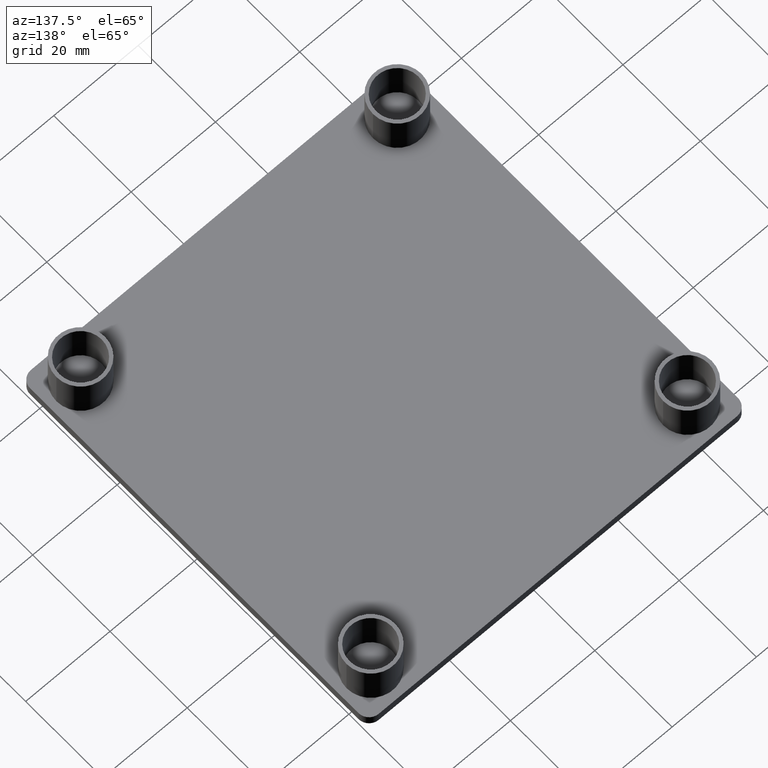
[diagram: clean part render]
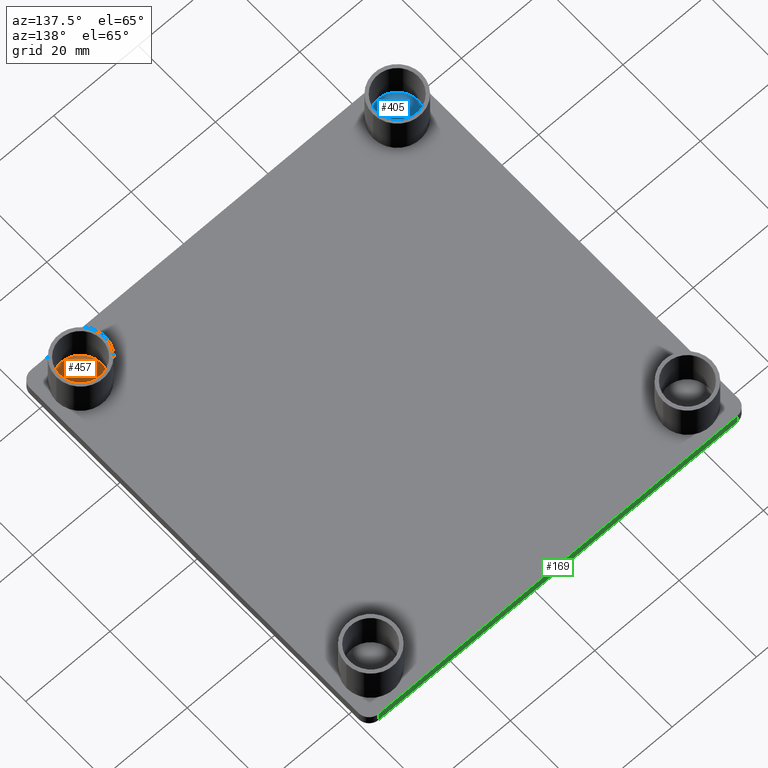
[diagram: same view with three faces highlighted in distinct colors, each labeled with its STEP entity id]
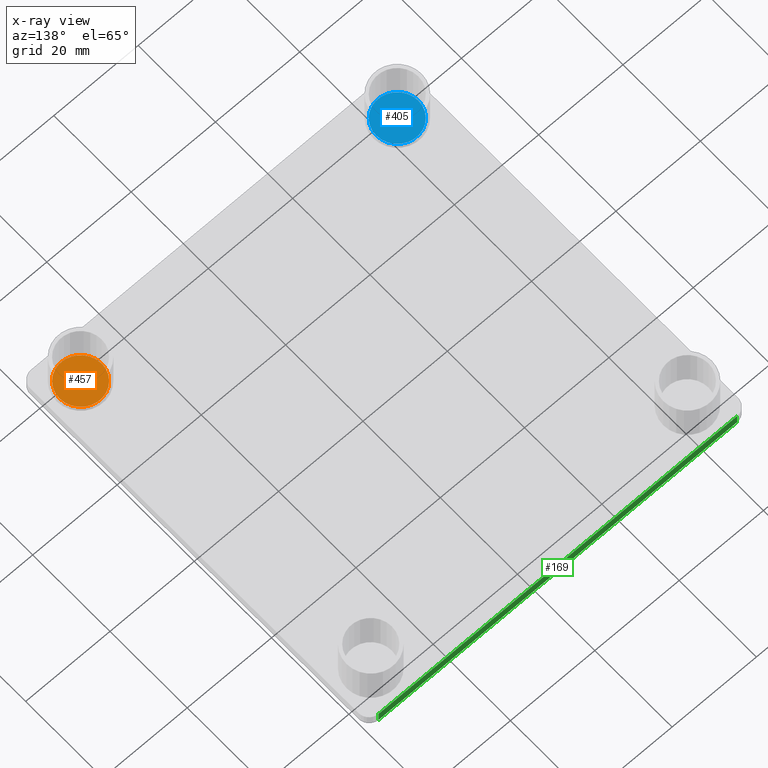
[diagram: x-ray of the same camera — body ghosted, the three highlighted faces saturated]
A machine part, auxiliary view with three faces highlighted in distinct colors.
The next image is the same camera in x-ray (body ghosted, the three faces saturated) — at least one of them is partly hidden behind the body in this view.
Their STEP definitions:

[orange] entity #457 — the highlighted planar face has unit normal (0, 0, 1).
#432=CARTESIAN_POINT('',(-98.999955232832463,-53.999977732792559,0.0));
#433=DIRECTION('',(0.0,0.0,1.0));
#434=DIRECTION('',(1.0,0.0,0.0));
#435=AXIS2_PLACEMENT_3D('',#432,#433,#434);
#436=PLANE('',#435);
#437=CARTESIAN_POINT('',(-12.449999999950261,-37.549977499849774,0.0));
#438=VERTEX_POINT('',#437);
#439=CARTESIAN_POINT('',(-2.449999999990268,-37.549977499849774,0.0));
#440=VERTEX_POINT('',#439);
#441=CARTESIAN_POINT('',(-7.449999999970260,-37.549977499849774,0.0));
#442=DIRECTION('',(0.0,0.0,-1.0));
#443=DIRECTION('',(1.0,0.0,0.0));
#444=AXIS2_PLACEMENT_3D('',#441,#442,#443);
#445=CIRCLE('',#444,4.999999999980001);
#446=EDGE_CURVE('',#438,#440,#445,.T.);
#447=ORIENTED_EDGE('',*,*,#446,.F.);
#448=CARTESIAN_POINT('',(-7.449999999970260,-37.549977499849774,0.0));
#449=DIRECTION('',(0.0,0.0,-1.0));
#450=DIRECTION('',(1.0,0.0,0.0));
#451=AXIS2_PLACEMENT_3D('',#448,#449,#450);
#452=CIRCLE('',#451,4.999999999980001);
#453=EDGE_CURVE('',#440,#438,#452,.T.);
#454=ORIENTED_EDGE('',*,*,#453,.F.);
#455=EDGE_LOOP('',(#447,#454));
#456=FACE_OUTER_BOUND('',#455,.T.);
#457=ADVANCED_FACE('',(#456),#436,.T.);

[blue] entity #405 — the highlighted planar face has unit normal (0, 0, 1).
#380=CARTESIAN_POINT('',(-98.999955232832463,-53.999977732792559,0.0));
#381=DIRECTION('',(0.0,0.0,1.0));
#382=DIRECTION('',(1.0,0.0,0.0));
#383=AXIS2_PLACEMENT_3D('',#380,#381,#382);
#384=PLANE('',#383);
#385=CARTESIAN_POINT('',(-87.549999999649813,-37.550022499849547,0.0));
#386=VERTEX_POINT('',#385);
#387=CARTESIAN_POINT('',(-77.549999999689817,-37.550022499849547,0.0));
#388=VERTEX_POINT('',#387);
#389=CARTESIAN_POINT('',(-82.549999999669808,-37.550022499849547,0.0));
#390=DIRECTION('',(0.0,0.0,-1.0));
#391=DIRECTION('',(1.0,0.0,0.0));
#392=AXIS2_PLACEMENT_3D('',#389,#390,#391);
#393=CIRCLE('',#392,4.999999999980001);
#394=EDGE_CURVE('',#386,#388,#393,.T.);
#395=ORIENTED_EDGE('',*,*,#394,.F.);
#396=CARTESIAN_POINT('',(-82.549999999669808,-37.550022499849547,0.0));
#397=DIRECTION('',(0.0,0.0,-1.0));
#398=DIRECTION('',(1.0,0.0,0.0));
#399=AXIS2_PLACEMENT_3D('',#396,#397,#398);
#400=CIRCLE('',#399,4.999999999980001);
#401=EDGE_CURVE('',#388,#386,#400,.T.);
#402=ORIENTED_EDGE('',*,*,#401,.F.);
#403=EDGE_LOOP('',(#395,#402));
#404=FACE_OUTER_BOUND('',#403,.T.);
#405=ADVANCED_FACE('',(#404),#384,.T.);

[green] entity #169 — the highlighted planar face has unit normal (0, -1, 0).
#112=CARTESIAN_POINT('',(-2.499999999989768,44.999977499820034,-2.500000000000000));
#113=VERTEX_POINT('',#112);
#121=CARTESIAN_POINT('',(-2.499999999989768,44.999977499820034,0.0));
#122=VERTEX_POINT('',#121);
#123=CARTESIAN_POINT('',(-2.499999999989768,44.999977499820034,0.0));
#124=DIRECTION('',(0.0,0.0,-1.0));
#125=VECTOR('',#124,2.500000000000000);
#126=LINE('',#123,#125);
#127=EDGE_CURVE('',#122,#113,#126,.T.);
#139=CARTESIAN_POINT('',(-2.499999999989768,44.999977499820034,0.0));
#140=DIRECTION('',(0.0,-1.0,0.0));
#141=DIRECTION('',(-1.0,0.0,0.0));
#142=AXIS2_PLACEMENT_3D('',#139,#140,#141);
#143=PLANE('',#142);
#144=ORIENTED_EDGE('',*,*,#127,.T.);
#145=CARTESIAN_POINT('',(-87.499954999649844,44.999977499820034,-2.500000000000000));
#146=VERTEX_POINT('',#145);
#147=CARTESIAN_POINT('',(-2.499999999989853,44.999977499820034,-2.500000000000000));
#148=DIRECTION('',(-1.0,0.0,0.0));
#149=VECTOR('',#148,84.999954999659991);
#150=LINE('',#147,#149);
#151=EDGE_CURVE('',#113,#146,#150,.T.);
#152=ORIENTED_EDGE('',*,*,#151,.T.);
#153=CARTESIAN_POINT('',(-87.499954999649844,44.999977499820034,0.0));
#154=VERTEX_POINT('',#153);
#155=CARTESIAN_POINT('',(-87.499954999649844,44.999977499820034,0.0));
#156=DIRECTION('',(0.0,0.0,-1.0));
#157=VECTOR('',#156,2.500000000000000);
#158=LINE('',#155,#157);
#159=EDGE_CURVE('',#154,#146,#158,.T.);
#160=ORIENTED_EDGE('',*,*,#159,.F.);
#161=CARTESIAN_POINT('',(-2.499999999989853,44.999977499820034,0.0));
#162=DIRECTION('',(-1.0,0.0,0.0));
#163=VECTOR('',#162,84.999954999659991);
#164=LINE('',#161,#163);
#165=EDGE_CURVE('',#122,#154,#164,.T.);
#166=ORIENTED_EDGE('',*,*,#165,.F.);
#167=EDGE_LOOP('',(#144,#152,#160,#166));
#168=FACE_OUTER_BOUND('',#167,.T.);
#169=ADVANCED_FACE('',(#168),#143,.F.);